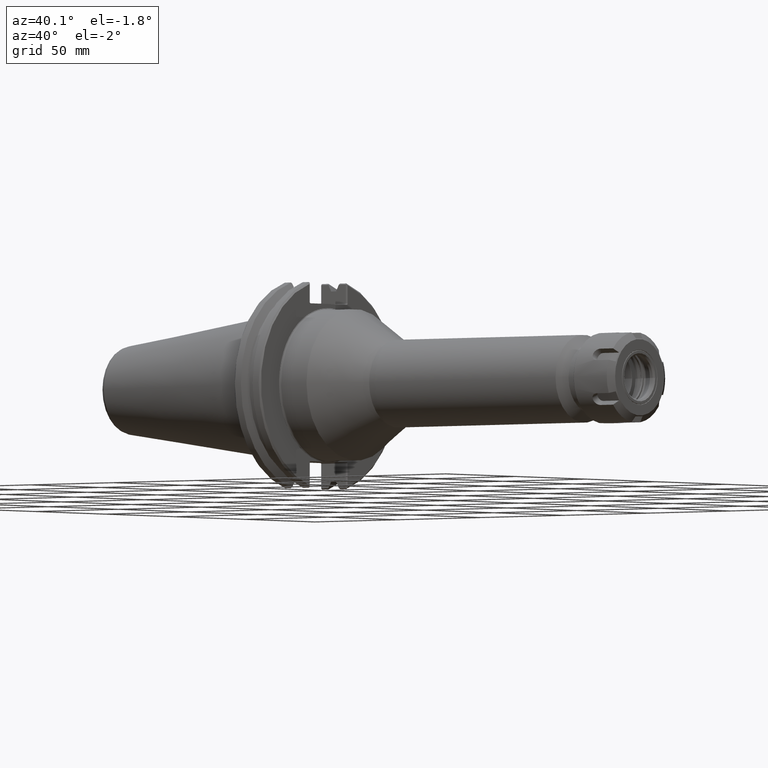
[diagram: clean part render]
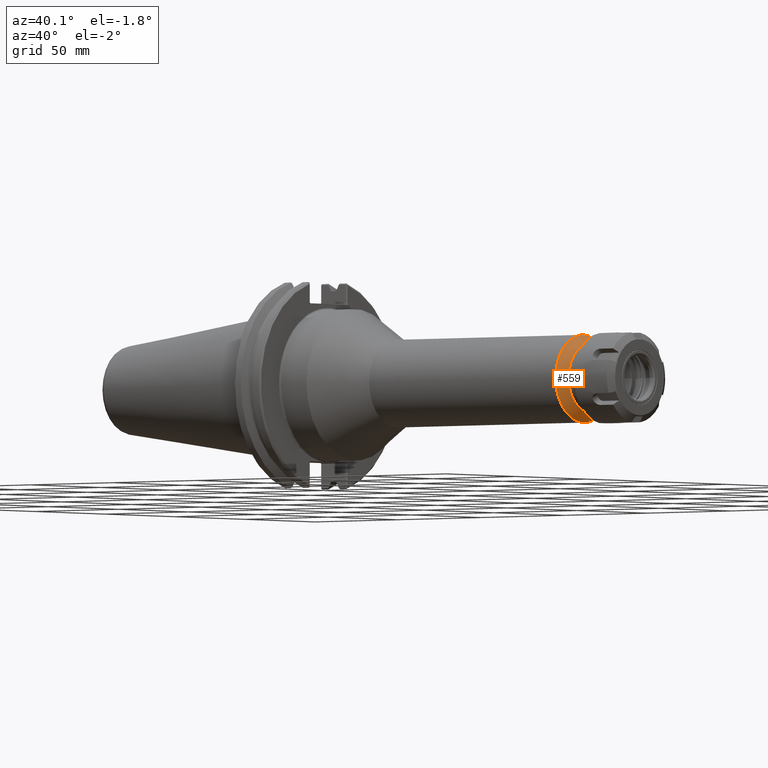
[diagram: same view with one face highlighted and labeled with its STEP entity id]
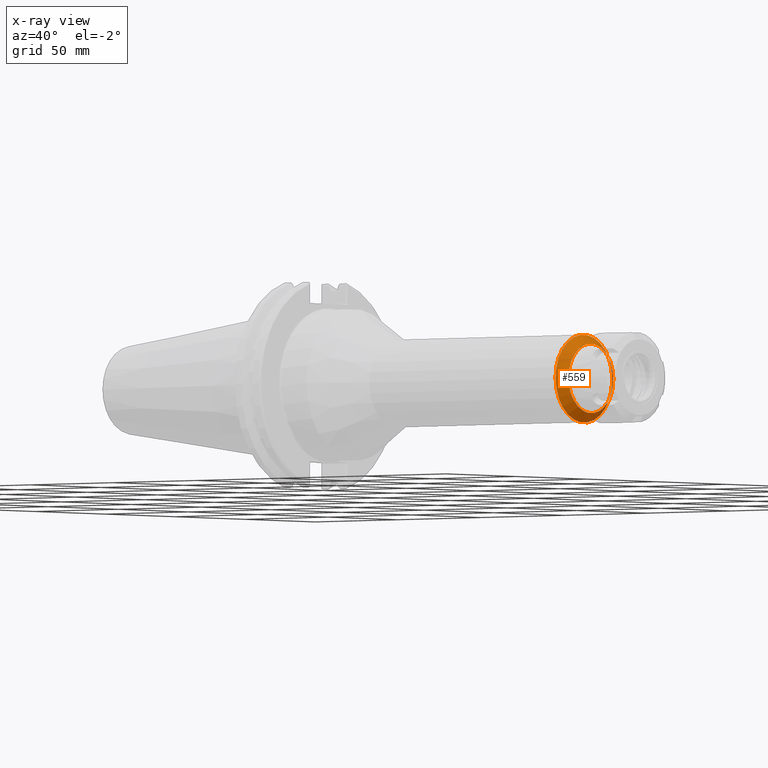
[diagram: x-ray of the same camera — body ghosted, the highlighted face saturated]
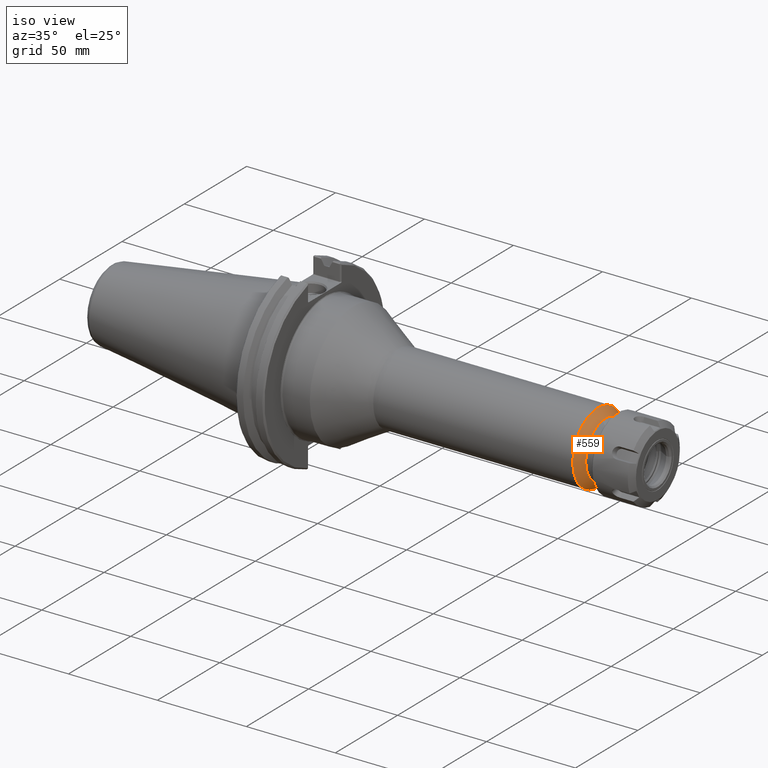
[diagram: same view with one face highlighted and labeled with its STEP entity id]
A machine part, auxiliary view. The second image highlights one B-rep face of the part: STEP entity #559.
The next image is the same camera in x-ray: the body ghosted, the highlighted face saturated — about 2% of this face is hidden behind the body in this view.
A second angle (iso view) of the same face is appended — the face is thin or edge-on in the first view.
In plain terms, the highlighted conical surface has half-angle 45 deg.
Its self-contained STEP definition (entity closure, byte-faithful):
#333=CARTESIAN_POINT('',(6.964,0.62992125984252,0.0));
#334=VERTEX_POINT('',#333);
#335=CARTESIAN_POINT('',(6.964,0.0,0.0));
#336=DIRECTION('',(1.0,0.0,0.0));
#337=DIRECTION('',(0.0,1.0,0.0));
#338=AXIS2_PLACEMENT_3D('',#335,#336,#337);
#339=CIRCLE('',#338,0.62992125984252);
#340=EDGE_CURVE('',#334,#334,#339,.T.);
#533=CARTESIAN_POINT('',(6.79642125984252,0.797500000000001,0.0));
#534=VERTEX_POINT('',#533);
#535=CARTESIAN_POINT('',(6.79642125984252,0.0,0.0));
#536=DIRECTION('',(1.0,0.0,0.0));
#537=DIRECTION('',(0.0,1.0,0.0));
#538=AXIS2_PLACEMENT_3D('',#535,#536,#537);
#539=CIRCLE('',#538,0.797500000000001);
#540=EDGE_CURVE('',#534,#534,#539,.T.);
#548=CARTESIAN_POINT('',(6.88021062992126,0.0,0.0));
#549=DIRECTION('',(-1.0,0.0,0.0));
#550=DIRECTION('',(0.0,1.0,0.0));
#551=AXIS2_PLACEMENT_3D('',#548,#549,#550);
#552=CONICAL_SURFACE('',#551,0.71371062992126,44.999999999999964);
#553=ORIENTED_EDGE('',*,*,#340,.F.);
#554=EDGE_LOOP('',(#553));
#555=FACE_OUTER_BOUND('',#554,.T.);
#556=ORIENTED_EDGE('',*,*,#540,.T.);
#557=EDGE_LOOP('',(#556));
#558=FACE_BOUND('',#557,.T.);
#559=ADVANCED_FACE('',(#555,#558),#552,.T.);